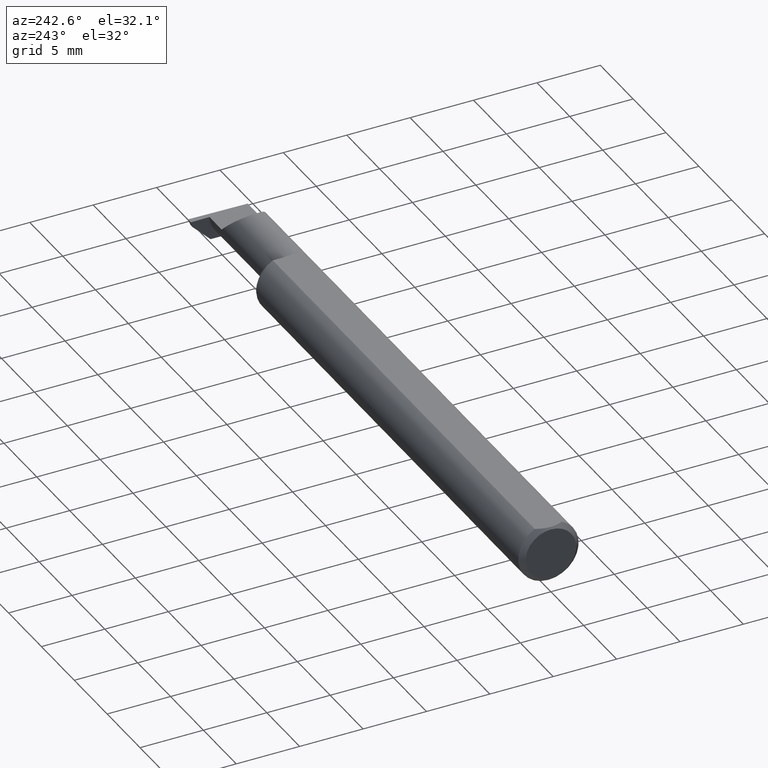
[diagram: clean part render]
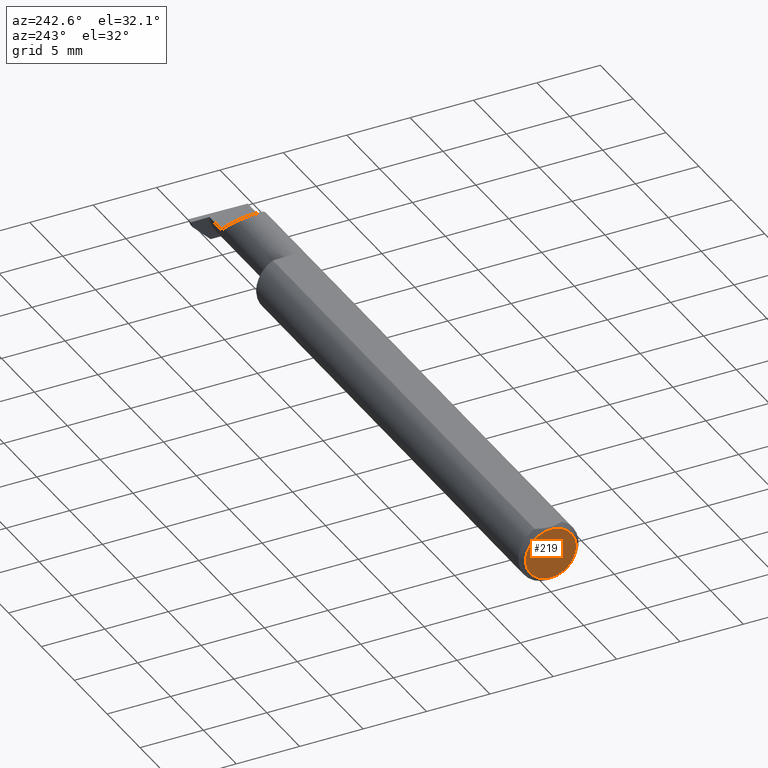
[diagram: same view with one face highlighted and labeled with its STEP entity id]
A machine part, auxiliary view. The second image highlights one B-rep face of the part: STEP entity #219.
In plain terms, the highlighted planar face has unit normal (1, 0, 0).
Its self-contained STEP definition (entity closure, byte-faithful):
#19 = ORIENTED_EDGE ( 'NONE', *, *, #245, .T. ) ;
#61 = CIRCLE ( 'NONE', #203, 0.07875000000000001443 ) ;
#69 = DIRECTION ( 'NONE',  ( -1.000000000000000000, -0.000000000000000000, -0.000000000000000000 ) ) ;
#74 = VERTEX_POINT ( 'NONE', #432 ) ;
#82 = EDGE_CURVE ( 'NONE', #326, #74, #449, .T. ) ;
#179 = FACE_OUTER_BOUND ( 'NONE', #489, .T. ) ;
#183 = CARTESIAN_POINT ( 'NONE',  ( 0.000000000000000000, 0.000000000000000000, 0.000000000000000000 ) ) ;
#203 = AXIS2_PLACEMENT_3D ( 'NONE', #523, #427, #372 ) ;
#215 = ORIENTED_EDGE ( 'NONE', *, *, #82, .T. ) ;
#219 = ADVANCED_FACE ( 'NONE', ( #179 ), #599, .F. ) ;
#245 = EDGE_CURVE ( 'NONE', #74, #326, #61, .T. ) ;
#248 = AXIS2_PLACEMENT_3D ( 'NONE', #183, #555, #511 ) ;
#326 = VERTEX_POINT ( 'NONE', #466 ) ;
#330 = CARTESIAN_POINT ( 'NONE',  ( 0.000000000000000000, 0.000000000000000000, 0.000000000000000000 ) ) ;
#372 = DIRECTION ( 'NONE',  ( 0.000000000000000000, 0.000000000000000000, 1.000000000000000000 ) ) ;
#427 = DIRECTION ( 'NONE',  ( -1.000000000000000000, -0.000000000000000000, -0.000000000000000000 ) ) ;
#432 = CARTESIAN_POINT ( 'NONE',  ( 0.000000000000000000, 1.056257864264592268E-17, 0.07875000000000001443 ) ) ;
#449 = CIRCLE ( 'NONE', #505, 0.07875000000000001443 ) ;
#466 = CARTESIAN_POINT ( 'NONE',  ( 0.000000000000000000, 0.000000000000000000, -0.07875000000000001443 ) ) ;
#489 = EDGE_LOOP ( 'NONE', ( #215, #19 ) ) ;
#505 = AXIS2_PLACEMENT_3D ( 'NONE', #330, #69, #536 ) ;
#511 = DIRECTION ( 'NONE',  ( 0.000000000000000000, 0.000000000000000000, -1.000000000000000000 ) ) ;
#523 = CARTESIAN_POINT ( 'NONE',  ( 0.000000000000000000, 0.000000000000000000, 0.000000000000000000 ) ) ;
#536 = DIRECTION ( 'NONE',  ( 0.000000000000000000, 0.000000000000000000, 1.000000000000000000 ) ) ;
#555 = DIRECTION ( 'NONE',  ( 1.000000000000000000, 0.000000000000000000, 0.000000000000000000 ) ) ;
#599 = PLANE ( 'NONE',  #248 ) ;